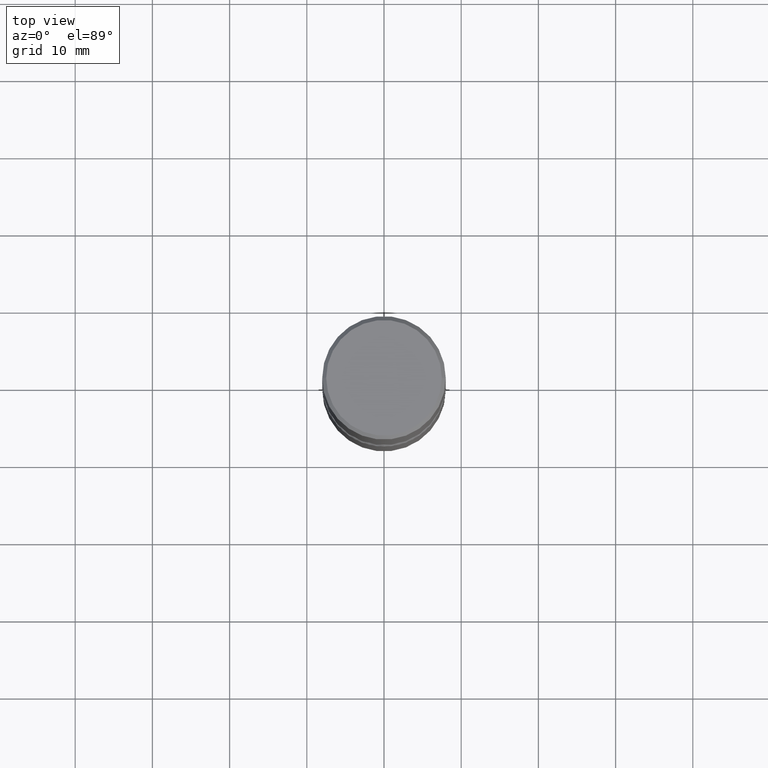
[diagram: clean part render]
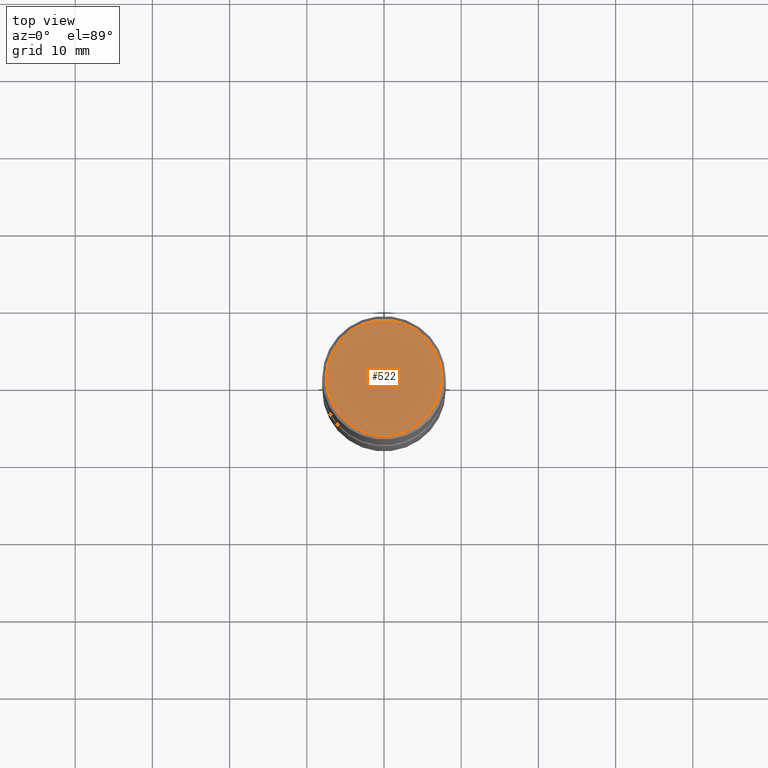
[diagram: same view with one face highlighted and labeled with its STEP entity id]
A machine part, top view. The second image highlights one B-rep face of the part: STEP entity #522.
In plain terms, the highlighted planar face has unit normal (0, -0, -1).
Its self-contained STEP definition (entity closure, byte-faithful):
#5 = CIRCLE ( 'NONE', #468, 0.2949500000000001565 ) ;
#13 = CARTESIAN_POINT ( 'NONE',  ( -3.131554243005663153E-46, 4.471029511141347348E-32, 1.280553747030124924E-17 ) ) ;
#20 = DIRECTION ( 'NONE',  ( -2.445468806185136597E-29, 3.491481338843145583E-15, 1.000000000000000000 ) ) ;
#103 = CARTESIAN_POINT ( 'NONE',  ( 0.2949500000000001565, -2.127023677808861258E-15, 1.280553747031588939E-17 ) ) ;
#111 = DIRECTION ( 'NONE',  ( 2.438088387897960049E-29, -3.491481338843145188E-15, -1.000000000000000000 ) ) ;
#142 = CARTESIAN_POINT ( 'NONE',  ( 2.059624841783565247E-15, 0.2949500000000001565, -1.023409652156635730E-15 ) ) ;
#149 = CARTESIAN_POINT ( 'NONE',  ( -3.131554243005663153E-46, 4.471029511141347348E-32, 1.280553747030124924E-17 ) ) ;
#167 = ORIENTED_EDGE ( 'NONE', *, *, #280, .T. ) ;
#187 = DIRECTION ( 'NONE',  ( 1.000000000000000000, -6.982962677686267499E-15, 4.876053491004732105E-29 ) ) ;
#224 = DIRECTION ( 'NONE',  ( -2.445468806185136597E-29, 3.491481338843145583E-15, 1.000000000000000000 ) ) ;
#225 = AXIS2_PLACEMENT_3D ( 'NONE', #142, #111, #489 ) ;
#280 = EDGE_CURVE ( 'NONE', #544, #378, #283, .T. ) ;
#283 = CIRCLE ( 'NONE', #406, 0.2949500000000001565 ) ;
#305 = ORIENTED_EDGE ( 'NONE', *, *, #517, .T. ) ;
#347 = FACE_OUTER_BOUND ( 'NONE', #451, .T. ) ;
#378 = VERTEX_POINT ( 'NONE', #103 ) ;
#406 = AXIS2_PLACEMENT_3D ( 'NONE', #149, #20, #454 ) ;
#442 = CARTESIAN_POINT ( 'NONE',  ( -0.2949500000000001565, 2.094539655171996896E-15, 1.280553747028672311E-17 ) ) ;
#451 = EDGE_LOOP ( 'NONE', ( #167, #305 ) ) ;
#454 = DIRECTION ( 'NONE',  ( 1.000000000000000000, -6.982962677686267499E-15, 4.876053491004732105E-29 ) ) ;
#468 = AXIS2_PLACEMENT_3D ( 'NONE', #13, #224, #187 ) ;
#489 = DIRECTION ( 'NONE',  ( -1.000000000000000000, 6.982962677686265922E-15, -4.876176775795935793E-29 ) ) ;
#517 = EDGE_CURVE ( 'NONE', #378, #544, #5, .T. ) ;
#522 = ADVANCED_FACE ( 'NONE', ( #347 ), #540, .F. ) ;
#540 = PLANE ( 'NONE',  #225 ) ;
#544 = VERTEX_POINT ( 'NONE', #442 ) ;